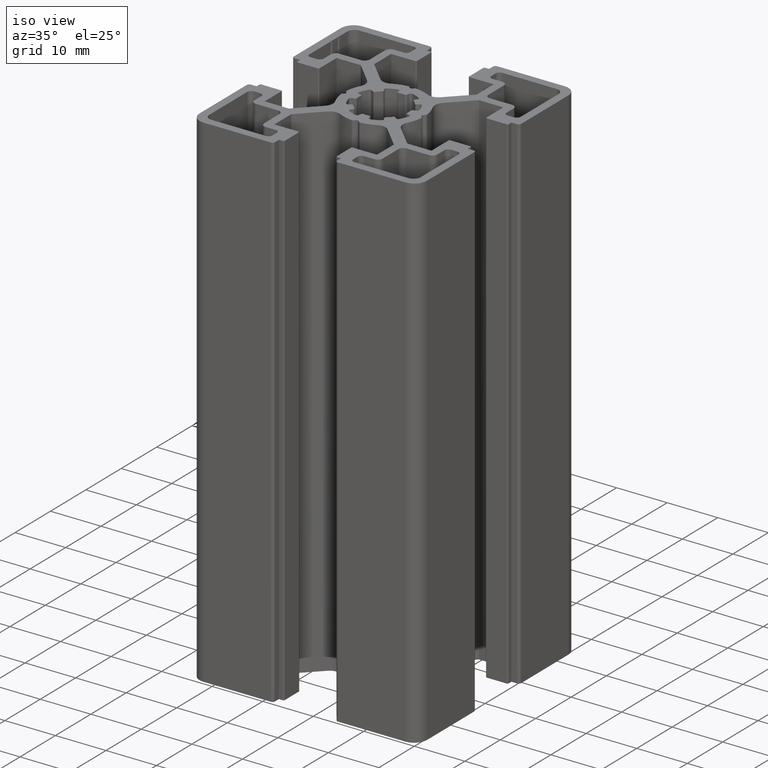
[diagram: clean part render]
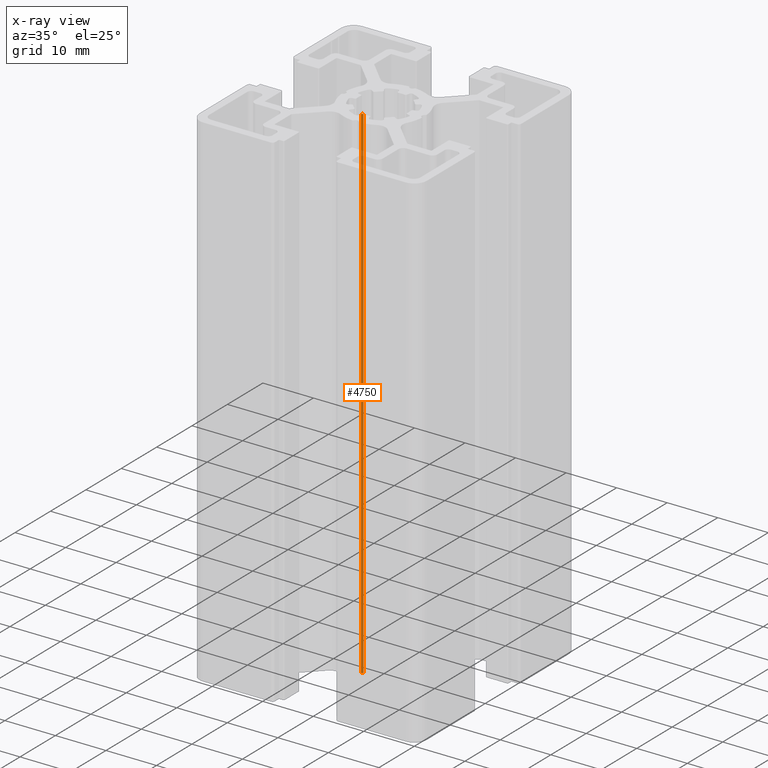
[diagram: x-ray — body ghosted, one internal face saturated and labeled with its STEP entity id]
A machine part, iso view, then the same camera in x-ray: the body is ghosted and one INTERNAL B-rep face — a face not visible from any outside direction — is saturated and labeled: STEP entity #4750.
In plain terms, the highlighted cylindrical surface (edge-blend (fillet) strip) has radius 0.3 mm, axis along (0, 0, 1).
Its self-contained STEP definition (entity closure, byte-faithful):
#83=CIRCLE('',#5059,0.3);
#84=CIRCLE('',#5060,0.3);
#326=CYLINDRICAL_SURFACE('',#5058,0.3);
#494=FACE_OUTER_BOUND('',#742,.T.);
#742=EDGE_LOOP('',(#3345,#3346,#3347,#3348));
#1064=LINE('',#7336,#1530);
#1065=LINE('',#7342,#1531);
#1530=VECTOR('',#5824,100.);
#1531=VECTOR('',#5831,100.);
#1993=VERTEX_POINT('',#7332);
#1994=VERTEX_POINT('',#7334);
#1995=VERTEX_POINT('',#7338);
#1996=VERTEX_POINT('',#7340);
#2546=EDGE_CURVE('',#1994,#1993,#1064,.T.);
#2547=EDGE_CURVE('',#1993,#1995,#83,.T.);
#2548=EDGE_CURVE('',#1996,#1994,#84,.T.);
#2549=EDGE_CURVE('',#1996,#1995,#1065,.T.);
#3345=ORIENTED_EDGE('',*,*,#2547,.F.);
#3346=ORIENTED_EDGE('',*,*,#2546,.F.);
#3347=ORIENTED_EDGE('',*,*,#2548,.F.);
#3348=ORIENTED_EDGE('',*,*,#2549,.T.);
#4750=ADVANCED_FACE('',(#494),#326,.T.);
#5058=AXIS2_PLACEMENT_3D('',#7337,#5825,#5826);
#5059=AXIS2_PLACEMENT_3D('',#7339,#5827,#5828);
#5060=AXIS2_PLACEMENT_3D('',#7341,#5829,#5830);
#5824=DIRECTION('',(0.,0.,1.));
#5825=DIRECTION('center_axis',(0.,0.,1.));
#5826=DIRECTION('ref_axis',(0.117625930451933,0.993057974382824,0.));
#5827=DIRECTION('center_axis',(0.,0.,1.));
#5828=DIRECTION('ref_axis',(0.117625930451933,0.993057974382824,0.));
#5829=DIRECTION('center_axis',(0.,0.,-1.));
#5830=DIRECTION('ref_axis',(0.117625930451933,0.993057974382824,0.));
#5831=DIRECTION('',(0.,0.,1.));
#7332=CARTESIAN_POINT('',(-0.588128845643721,-4.96528960037171,100.));
#7334=CARTESIAN_POINT('',(-0.588128845643721,-4.96528960037171,0.));
#7336=CARTESIAN_POINT('',(-0.588128845643721,-4.96528960037171,0.));
#7337=CARTESIAN_POINT('Origin',(-0.6234166247793,-5.26320699268656,0.));
#7338=CARTESIAN_POINT('',(-0.918859048527638,-5.21111309429425,100.));
#7339=CARTESIAN_POINT('Origin',(-0.6234166247793,-5.26320699268656,100.));
#7340=CARTESIAN_POINT('',(-0.918859048527638,-5.21111309429425,0.));
#7341=CARTESIAN_POINT('Origin',(-0.6234166247793,-5.26320699268656,0.));
#7342=CARTESIAN_POINT('',(-0.918859048527638,-5.21111309429425,0.));